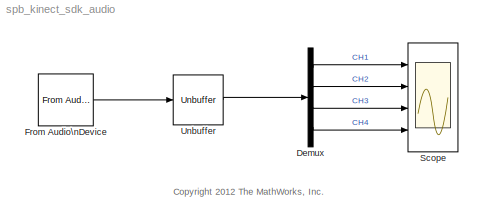
MODEL spb_kinect_sdk_audio
KIND model
BLOCK [Demux] Demux
  DisplayOption = bar
  Ports = [1, 4]
  SID = 122
BLOCK [Reference] From Audio\nDevice  REF=dspsrcs4/From Audio\nDevice
  DialogController = dspDDGCreate
  DialogControllerArgs = DataTag0
  Ports = [0, 1]
  SID = 123
  SourceBlock = dspsrcs4/From Audio\nDevice
  SourceType = From Audio Device
  autoBufferSize = on
  bufferSize = 4096
  deviceDatatype = 16-bit integer
  deviceName = ƒ}ƒCƒN”z—ñ (Kinect USB Audio)
  frameSize = 1024
  numChannels = 4
  outputDatatype = single
  queueDuration = 1.0
  sampleRate = 16000
BLOCK [Scope] Scope
  DataFormat = StructureWithTime
  Floating = off
  LimitDataPoints = off
  NumInputPorts = 4
  Ports = [4]
  SID = 124
  SampleTime = 0
  TimeRange = 10
  YMax = 2~2~2~2
  YMin = -2~-2~-2~-2
BLOCK [Unbuffer] Unbuffer
  Ports = [1, 1]
  SID = 126
  SampleBasedProcessing = Same as frame based
ANNOTATION (root): <copyright redacted>
LINE Demux:1 -> Scope:1
LINE Demux:2 -> Scope:2
LINE Demux:3 -> Scope:3
LINE Demux:4 -> Scope:4
LINE From Audio\nDevice:1 -> Unbuffer:1
LINE Unbuffer:1 -> Demux:1
